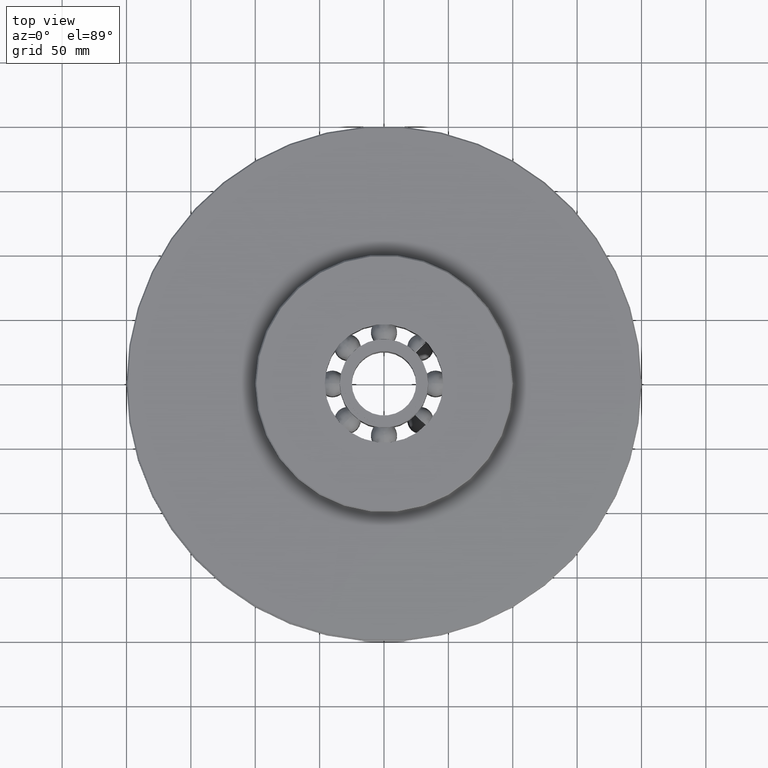
[diagram: clean part render]
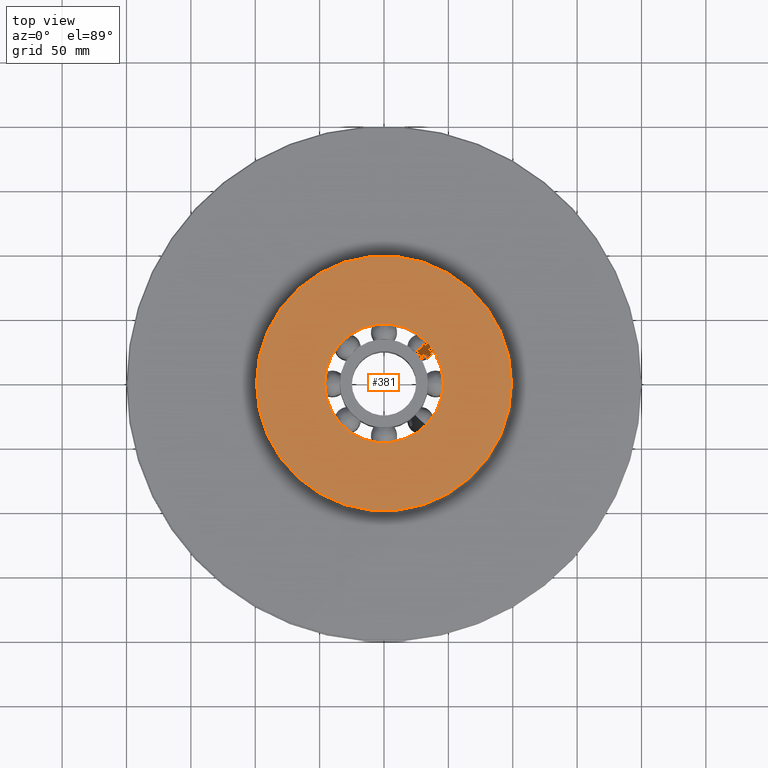
[diagram: same view with one face highlighted and labeled with its STEP entity id]
A machine part, top view. The second image highlights one B-rep face of the part: STEP entity #381.
In plain terms, the highlighted planar face has unit normal (0, 0, 1).
Its self-contained STEP definition (entity closure, byte-faithful):
#381=ADVANCED_FACE('',(#787,#788),#789,.T.);
#787=FACE_BOUND('',#1197,.T.);
#788=FACE_OUTER_BOUND('',#1198,.T.);
#789=PLANE('',#1199);
#1197=EDGE_LOOP('',(#2475,#2476));
#1198=EDGE_LOOP('',(#2477,#2478));
#1199=AXIS2_PLACEMENT_3D('',#2479,#2480,#2481);
#2475=ORIENTED_EDGE('',*,*,#3041,.T.);
#2476=ORIENTED_EDGE('',*,*,#2786,.T.);
#2477=ORIENTED_EDGE('',*,*,#2690,.T.);
#2478=ORIENTED_EDGE('',*,*,#3083,.T.);
#2479=CARTESIAN_POINT('',(49.5,0.0,29.5));
#2480=DIRECTION('',(0.0,0.0,1.0));
#2481=DIRECTION('',(1.0,0.0,0.0));
#2690=EDGE_CURVE('',#3313,#3317,#3319,.T.);
#2786=EDGE_CURVE('',#3479,#3477,#3480,.T.);
#3041=EDGE_CURVE('',#3477,#3479,#3858,.T.);
#3083=EDGE_CURVE('',#3317,#3313,#3900,.T.);
#3313=VERTEX_POINT('',#5358);
#3317=VERTEX_POINT('',#5363);
#3319=CIRCLE('',#5366,99.0);
#3477=VERTEX_POINT('',#6265);
#3479=VERTEX_POINT('',#6268);
#3480=CIRCLE('',#6269,46.05);
#3858=CIRCLE('',#8752,46.05);
#3900=CIRCLE('',#9099,99.0);
#5358=CARTESIAN_POINT('',(99.0,0.0,29.5));
#5363=CARTESIAN_POINT('',(-99.0,1.21240033115588E-014,29.5));
#5366=AXIS2_PLACEMENT_3D('',#9294,#9295,#9296);
#6265=CARTESIAN_POINT('',(46.05,0.0,29.5));
#6268=CARTESIAN_POINT('',(-46.05,5.63949851007356E-015,29.5));
#6269=AXIS2_PLACEMENT_3D('',#9422,#9423,#9424);
#8752=AXIS2_PLACEMENT_3D('',#9689,#9690,#9691);
#9099=AXIS2_PLACEMENT_3D('',#9713,#9714,#9715);
#9294=CARTESIAN_POINT('',(0.0,0.0,29.5));
#9295=DIRECTION('',(0.0,0.0,1.0));
#9296=DIRECTION('',(1.0,0.0,0.0));
#9422=CARTESIAN_POINT('',(0.0,0.0,29.5));
#9423=DIRECTION('',(0.0,0.0,-1.0));
#9424=DIRECTION('',(1.0,0.0,0.0));
#9689=CARTESIAN_POINT('',(0.0,0.0,29.5));
#9690=DIRECTION('',(0.0,0.0,-1.0));
#9691=DIRECTION('',(1.0,0.0,0.0));
#9713=CARTESIAN_POINT('',(0.0,0.0,29.5));
#9714=DIRECTION('',(0.0,0.0,1.0));
#9715=DIRECTION('',(1.0,0.0,0.0));